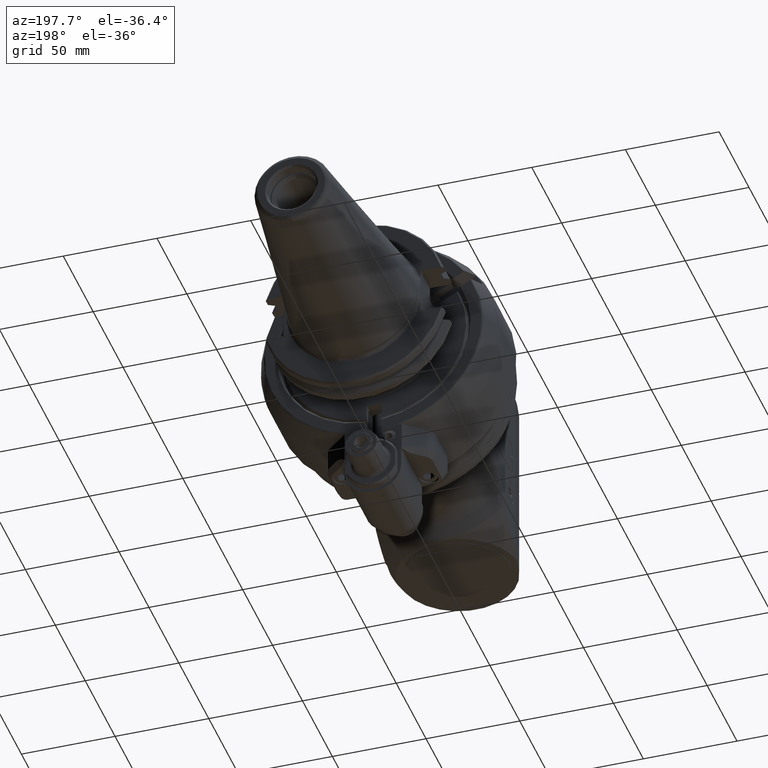
[diagram: clean part render]
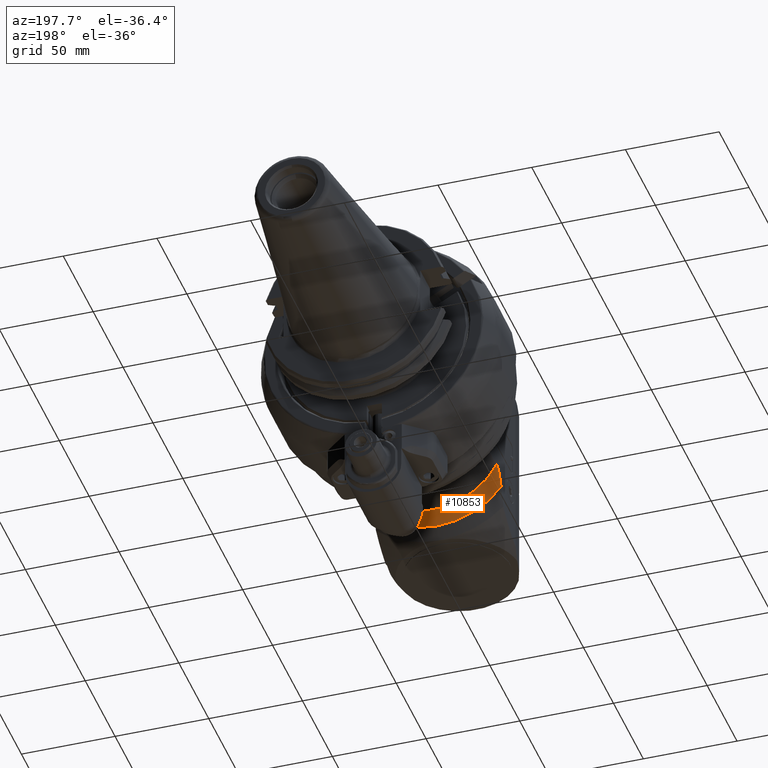
[diagram: same view with one face highlighted and labeled with its STEP entity id]
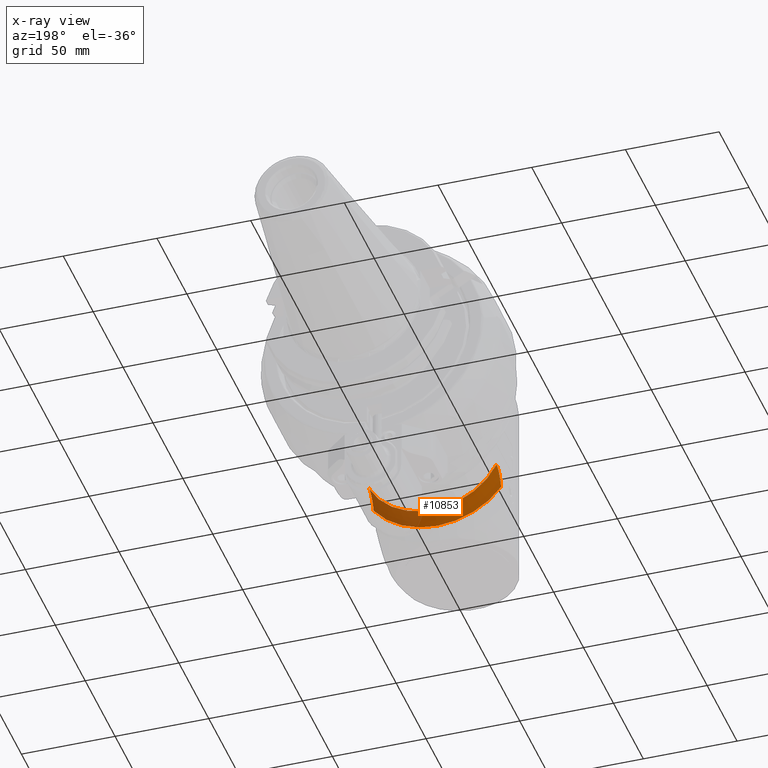
[diagram: x-ray of the same camera — body ghosted, the highlighted face saturated]
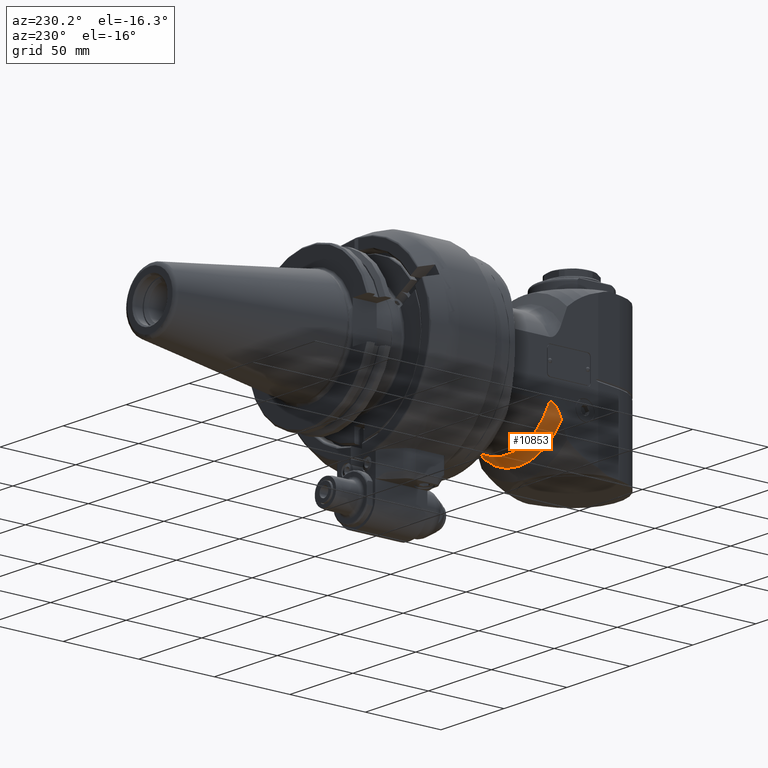
[diagram: same view with one face highlighted and labeled with its STEP entity id]
A machine part, auxiliary view. The second image highlights one B-rep face of the part: STEP entity #10853.
The next image is the same camera in x-ray: the body ghosted, the highlighted face saturated — about 33% of this face is hidden behind the body in this view.
A second angle (auxiliary view) of the same face is appended — the face is thin or edge-on in the first view.
In plain terms, the highlighted toroidal blend (fillet) surface has major radius 47 mm and minor (blend) radius 9 mm.
Its self-contained STEP definition (entity closure, byte-faithful):
#291=B_SPLINE_CURVE_WITH_KNOTS('',3,(#21463,#21464,#21465,#21466,#21467,
#21468,#21469,#21470,#21471,#21472,#21473,#21474,#21475,#21476),
 .UNSPECIFIED.,.F.,.F.,(4,2,2,2,2,2,4),(2.24338921671795,2.42136508411959,
2.7017409437378,2.91218233429832,3.12262372485883,3.26662172016158,3.38938345646085),
 .UNSPECIFIED.);
#304=B_SPLINE_CURVE_WITH_KNOTS('',3,(#21858,#21859,#21860,#21861,#21862,
#21863,#21864,#21865,#21866,#21867,#21868,#21869,#21870,#21871),
 .UNSPECIFIED.,.F.,.F.,(4,2,2,2,2,2,4),(-4.53537769620374,-4.3574018288021,
-4.07702596918389,-3.86658457862338,-3.65614318806286,-3.51214519276011,
-3.38938345646085),.UNSPECIFIED.);
#2897=FACE_OUTER_BOUND('',#3619,.T.);
#3619=EDGE_LOOP('',(#9510,#9511,#9512,#9513));
#4297=CIRCLE('',#12026,42.5);
#4304=CIRCLE('',#12040,38.);
#5198=VERTEX_POINT('',#21458);
#5199=VERTEX_POINT('',#21462);
#5270=VERTEX_POINT('',#21855);
#5271=VERTEX_POINT('',#21857);
#6631=EDGE_CURVE('',#5198,#5199,#291,.T.);
#6716=EDGE_CURVE('',#5271,#5270,#304,.T.);
#6738=EDGE_CURVE('',#5198,#5271,#4297,.T.);
#6745=EDGE_CURVE('',#5270,#5199,#4304,.T.);
#9510=ORIENTED_EDGE('',*,*,#6745,.T.);
#9511=ORIENTED_EDGE('',*,*,#6631,.F.);
#9512=ORIENTED_EDGE('',*,*,#6738,.T.);
#9513=ORIENTED_EDGE('',*,*,#6716,.T.);
#10379=TOROIDAL_SURFACE('',#12039,47.,9.);
#10853=ADVANCED_FACE('',(#2897),#10379,.F.);
#12026=AXIS2_PLACEMENT_3D('',#21933,#14805,#14806);
#12039=AXIS2_PLACEMENT_3D('',#21946,#14831,#14832);
#12040=AXIS2_PLACEMENT_3D('',#21947,#14833,#14834);
#14805=DIRECTION('center_axis',(-1.,0.,0.));
#14806=DIRECTION('ref_axis',(0.,1.,0.));
#14831=DIRECTION('center_axis',(-1.,0.,0.));
#14832=DIRECTION('ref_axis',(0.,0.,1.));
#14833=DIRECTION('center_axis',(1.,0.,0.));
#14834=DIRECTION('ref_axis',(0.,0.44659375653888,-0.894736842105259));
#21458=CARTESIAN_POINT('',(243.006472673,25.5,34.));
#21462=CARTESIAN_POINT('',(235.2122440389,16.97056274848,34.));
#21463=CARTESIAN_POINT('Ctrl Pts',(243.006472672964,25.5000000000124,34.));
#21464=CARTESIAN_POINT('Ctrl Pts',(242.801163143501,24.9073224394958,34.));
#21465=CARTESIAN_POINT('Ctrl Pts',(242.563063857014,24.3019762332053,34.));
#21466=CARTESIAN_POINT('Ctrl Pts',(241.879221421984,22.775617262053,34.));
#21467=CARTESIAN_POINT('Ctrl Pts',(241.390853415105,21.8740827520354,34.));
#21468=CARTESIAN_POINT('Ctrl Pts',(240.499302079956,20.5022881748303,34.));
#21469=CARTESIAN_POINT('Ctrl Pts',(240.041991813742,19.8818483557008,34.));
#21470=CARTESIAN_POINT('Ctrl Pts',(239.018125943999,18.7484497607113,34.));
#21471=CARTESIAN_POINT('Ctrl Pts',(238.450410072228,18.236539663176,34.));
#21472=CARTESIAN_POINT('Ctrl Pts',(237.466115327277,17.5830700752859,34.));
#21473=CARTESIAN_POINT('Ctrl Pts',(236.952877761955,17.3216241650835,34.));
#21474=CARTESIAN_POINT('Ctrl Pts',(236.105867080769,17.0509805712282,34.));
#21475=CARTESIAN_POINT('Ctrl Pts',(235.621449826564,16.9705627484771,34.));
#21476=CARTESIAN_POINT('Ctrl Pts',(235.2122440389,16.9705627484771,34.));
#21855=CARTESIAN_POINT('',(235.2122440389,16.97056274848,-34.));
#21857=CARTESIAN_POINT('',(243.006472673,25.5,-34.));
#21858=CARTESIAN_POINT('Ctrl Pts',(243.006472672964,25.5000000000124,-34.));
#21859=CARTESIAN_POINT('Ctrl Pts',(242.801163143501,24.9073224394958,-34.));
#21860=CARTESIAN_POINT('Ctrl Pts',(242.563063857014,24.3019762332053,-34.));
#21861=CARTESIAN_POINT('Ctrl Pts',(241.879221421984,22.775617262053,-34.));
#21862=CARTESIAN_POINT('Ctrl Pts',(241.390853415105,21.8740827520354,-34.));
#21863=CARTESIAN_POINT('Ctrl Pts',(240.499302079956,20.5022881748303,-34.));
#21864=CARTESIAN_POINT('Ctrl Pts',(240.041991813742,19.8818483557008,-34.));
#21865=CARTESIAN_POINT('Ctrl Pts',(239.018125943999,18.7484497607113,-34.));
#21866=CARTESIAN_POINT('Ctrl Pts',(238.450410072228,18.236539663176,-34.));
#21867=CARTESIAN_POINT('Ctrl Pts',(237.466115327277,17.5830700752859,-34.));
#21868=CARTESIAN_POINT('Ctrl Pts',(236.952877761955,17.3216241650835,-34.));
#21869=CARTESIAN_POINT('Ctrl Pts',(236.105867080769,17.0509805712282,-34.));
#21870=CARTESIAN_POINT('Ctrl Pts',(235.621449826564,16.9705627484771,-34.));
#21871=CARTESIAN_POINT('Ctrl Pts',(235.2122440389,16.9705627484771,-34.));
#21933=CARTESIAN_POINT('Origin',(243.006472673,0.,0.));
#21946=CARTESIAN_POINT('Origin',(235.2122440389,0.,0.));
#21947=CARTESIAN_POINT('Origin',(235.2122440389,0.,0.));